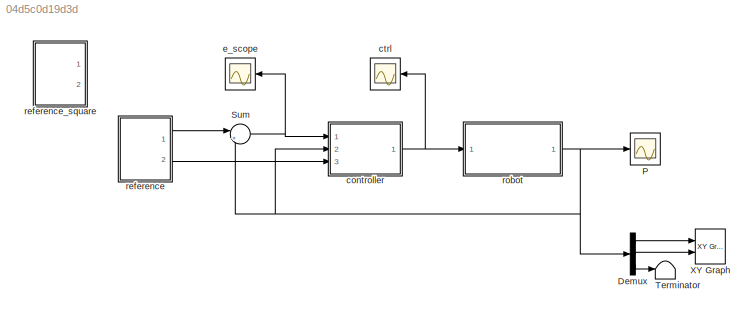
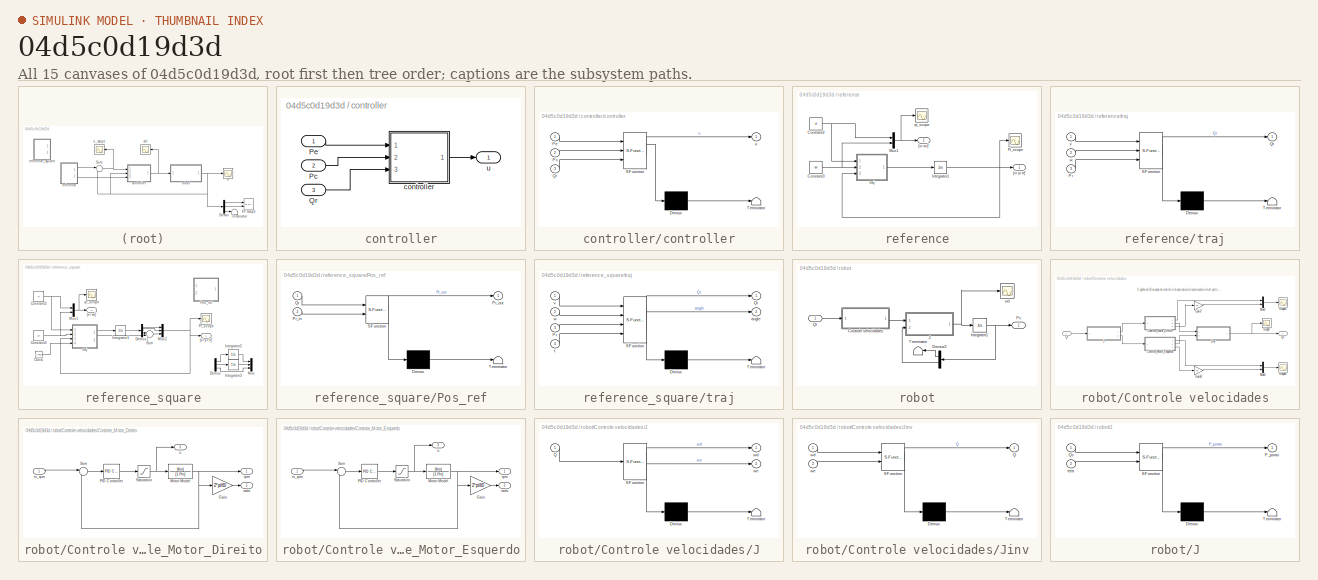
[diagram: thumbnail index - all 15 canvases of the model, root first then tree order]
MODEL slx_04d5c0d19d3d
KIND model
CONFIG AbsTol = auto
CONFIG EnableMultiTasking = on
CONFIG FixedStep = auto
CONFIG MaxStep = auto
CONFIG MinStep = auto
CONFIG RelTol = 1e-5
CONFIG SampleTimeConstraint = Unconstrained
CONFIG Solver = ode45
CONFIG SolverName = ode45
CONFIG StartTime = 0.0
CONFIG StopTime = 1
BLOCK [Demux] Demux
  DisplayOption = bar
  Outputs = 3
  Ports = [1, 3]
BLOCK [Scope] P
  Floating = off
  NumInputPorts = 1
  Ports = [1]
  ScopeSpecificationString = Simulink.scopes.TimeScopeBlockCfg('CurrentConfiguration', extmgr.ConfigurationSet(extmgr.Configuration('Core','General UI',true),extmgr.Configuration('Core','Source UI',true),extmgr.Configuration('Sources','WiredSimulink',true,'DataLogging',true,'DataLoggingVariableName','ScopeData3','DataLoggingSaveFormat','StructureWithTime','DataLoggingDecimation','1','DataLoggingDecimateData',true),extmgr.Conf...<+1715ch>
BLOCK [Sum] Sum
  AccumDataTypeStr = double
  IconShape = round
  InputSameDT = off
  Inputs = |+-
  OutDataTypeStr = Inherit: Inherit via internal rule
  Ports = [2, 1]
  SaturateOnIntegerOverflow = off
BLOCK [Terminator] Terminator
BLOCK [Reference] XY Graph  REF=simulink/Sinks/XY Graph
  Ports = [2]
  SourceBlock = simulink/Sinks/XY Graph
  SourceProductBaseCode = SL
  SourceProductName = Simulink
  SourceType = XY scope.
BLOCK [SubSystem] controller
  Ports = [3, 1]
  RequestExecContextInheritance = off
BLOCK [Inport] controller/Pc
  IconDisplay = Port number
  Port = 2
BLOCK [Inport] controller/Pe
  IconDisplay = Port number
BLOCK [Inport] controller/Qr
  IconDisplay = Port number
  Port = 3
BLOCK [SubSystem] controller/controller
  ErrorFcn = Stateflow.Translate.translate
  PermitHierarchicalResolution = ExplicitOnly
  Ports = [3, 1]
  RequestExecContextInheritance = off
  SFBlockType = MATLAB Function
  TreatAsAtomicUnit = on
BLOCK [Demux] controller/controller/ Demux 
  Outputs = 1
  Ports = [1, 1]
BLOCK [S-Function] controller/controller/ SFunction 
  EnableBusSupport = on
  FunctionName = sf_sfun
  Parameters = kt,kx,ky
  PortCounts = [3 2]
  Ports = [3, 2]
  SFcnIsStateOwnerBlock = off
  SFunctionDeploymentMode = off
  Tag = Stateflow S-Function Kanayama_seguidor 4
BLOCK [Terminator] controller/controller/ Terminator 
BLOCK [Inport] controller/controller/Pc
  IconDisplay = Port number
  Port = 2
BLOCK [Inport] controller/controller/Pe
  IconDisplay = Port number
BLOCK [Inport] controller/controller/Qr
  IconDisplay = Port number
  Port = 3
BLOCK [Outport] controller/controller/u
  IconDisplay = Port number
BLOCK [Outport] controller/u
  IconDisplay = Port number
BLOCK [Scope] ctrl
  Floating = off
  NumInputPorts = 1
  Ports = [1]
  ScopeSpecificationString = Simulink.scopes.TimeScopeBlockCfg('CurrentConfiguration', extmgr.ConfigurationSet(extmgr.Configuration('Core','General UI',true),extmgr.Configuration('Core','Source UI',true),extmgr.Configuration('Sources','WiredSimulink',true,'DataLogging',true,'DataLoggingVariableName','ctrl','DataLoggingSaveFormat','StructureWithTime','DataLoggingDecimation','1','DataLoggingDecimateData',true),extmgr.Configurat...<+1724ch>
BLOCK [Scope] e_scope
  Floating = off
  NumInputPorts = 1
  Ports = [1]
  ScopeSpecificationString = Simulink.scopes.TimeScopeBlockCfg('CurrentConfiguration', extmgr.ConfigurationSet(extmgr.Configuration('Core','General UI',true),extmgr.Configuration('Core','Source UI',true),extmgr.Configuration('Sources','WiredSimulink',true,'DataLogging',true,'DataLoggingVariableName','e','DataLoggingSaveFormat','StructureWithTime','DataLoggingDecimation','1','DataLoggingDecimateData',true),extmgr.Configuration...<+1785ch>
BLOCK [SubSystem] reference
  Ports = [0, 2]
  RequestExecContextInheritance = off
BLOCK [Constant] reference/Constant2
  Value = vr
  VectorParams1D = off
BLOCK [Constant] reference/Constant3
  Value = wr
  VectorParams1D = off
BLOCK [Integrator] reference/Integrator1
  InitialCondition = ini
  Ports = [1, 1]
BLOCK [Mux] reference/Mux1
  DisplayOption = bar
  Inputs = 2
  Ports = [2, 1]
BLOCK [Scope] reference/Pr_scope
  Floating = off
  NumInputPorts = 1
  Ports = [1]
  ScopeSpecificationString = Simulink.scopes.TimeScopeBlockCfg('CurrentConfiguration', extmgr.ConfigurationSet(extmgr.Configuration('Core','General UI',true),extmgr.Configuration('Core','Source UI',true),extmgr.Configuration('Sources','WiredSimulink',true,'DataLogging',true,'DataLoggingVariableName','ScopeData1','DataLoggingSaveFormat','StructureWithTime','DataLoggingDecimation','1','DataLoggingDecimateData',true),extmgr.Conf...<+1783ch>
BLOCK [Outport] reference/[vr wr]'
  IconDisplay = Port number
  Port = 2
BLOCK [Outport] reference/[xr yr tr]' 
  IconDisplay = Port number
BLOCK [Scope] reference/qr_scope
  Floating = off
  NumInputPorts = 1
  Ports = [1]
  ScopeSpecificationString = Simulink.scopes.TimeScopeBlockCfg('CurrentConfiguration', extmgr.ConfigurationSet(extmgr.Configuration('Core','General UI',true),extmgr.Configuration('Core','Source UI',true),extmgr.Configuration('Sources','WiredSimulink',true,'DataLogging',true,'DataLoggingVariableName','ScopeData2','DataLoggingSaveFormat','StructureWithTime','DataLoggingDecimation','1','DataLoggingDecimateData',true),extmgr.Conf...<+1699ch>
BLOCK [SubSystem] reference/traj
  ErrorFcn = Stateflow.Translate.translate
  PermitHierarchicalResolution = ExplicitOnly
  Ports = [3, 1]
  RequestExecContextInheritance = off
  SFBlockType = MATLAB Function
  TreatAsAtomicUnit = on
BLOCK [Demux] reference/traj/ Demux 
  Outputs = 1
  Ports = [1, 1]
BLOCK [S-Function] reference/traj/ SFunction 
  EnableBusSupport = on
  FunctionName = sf_sfun
  PortCounts = [3 2]
  Ports = [3, 2]
  SFcnIsStateOwnerBlock = off
  SFunctionDeploymentMode = off
  Tag = Stateflow S-Function Kanayama_seguidor 7
BLOCK [Terminator] reference/traj/ Terminator 
BLOCK [Inport] reference/traj/Pr
  IconDisplay = Port number
  Port = 3
BLOCK [Outport] reference/traj/Qr
  IconDisplay = Port number
BLOCK [Inport] reference/traj/v
  IconDisplay = Port number
BLOCK [Inport] reference/traj/w
  IconDisplay = Port number
  Port = 2
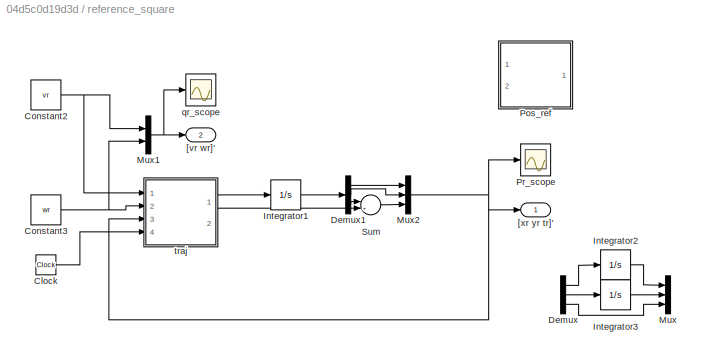
BLOCK [SubSystem] reference_square
  Commented = on
  Ports = [0, 2]
  RequestExecContextInheritance = off
BLOCK [Clock] reference_square/Clock
BLOCK [Constant] reference_square/Constant2
  SampleTime = Ts
  Value = vr
  VectorParams1D = off
BLOCK [Constant] reference_square/Constant3
  SampleTime = Ts
  Value = wr
  VectorParams1D = off
BLOCK [Demux] reference_square/Demux
  Commented = on
  DisplayOption = bar
  Outputs = 3
  Ports = [1, 3]
BLOCK [Demux] reference_square/Demux1
  DisplayOption = bar
  Outputs = 3
  Ports = [1, 3]
BLOCK [Integrator] reference_square/Integrator1
  InitialCondition = ini
  Ports = [1, 1]
BLOCK [Integrator] reference_square/Integrator2
  Commented = on
  InitialCondition = ini(1)
  Ports = [1, 1]
BLOCK [Integrator] reference_square/Integrator3
  Commented = on
  InitialCondition = ini(2)
  Ports = [1, 1]
BLOCK [Mux] reference_square/Mux
  Commented = on
  DisplayOption = bar
  Inputs = 3
  Ports = [3, 1]
BLOCK [Mux] reference_square/Mux1
  DisplayOption = bar
  Inputs = 2
  Ports = [2, 1]
BLOCK [Mux] reference_square/Mux2
  DisplayOption = bar
  Inputs = 3
  Ports = [3, 1]
BLOCK [SubSystem] reference_square/Pos_ref
  Commented = on
  ErrorFcn = Stateflow.Translate.translate
  PermitHierarchicalResolution = ExplicitOnly
  Ports = [2, 1]
  RequestExecContextInheritance = off
  SFBlockType = MATLAB Function
  TreatAsAtomicUnit = on
BLOCK [Demux] reference_square/Pos_ref/ Demux 
  Outputs = 1
  Ports = [1, 1]
BLOCK [S-Function] reference_square/Pos_ref/ SFunction 
  EnableBusSupport = on
  FunctionName = sf_sfun
  PortCounts = [2 2]
  Ports = [2, 2]
  SFcnIsStateOwnerBlock = off
  SFunctionDeploymentMode = off
  Tag = Stateflow S-Function Kanayama_seguidor 6
BLOCK [Terminator] reference_square/Pos_ref/ Terminator 
BLOCK [Inport] reference_square/Pos_ref/Pr_in
  IconDisplay = Port number
  Port = 2
BLOCK [Outport] reference_square/Pos_ref/Pr_out
  IconDisplay = Port number
BLOCK [Inport] reference_square/Pos_ref/Qr
  IconDisplay = Port number
BLOCK [Scope] reference_square/Pr_scope
  Floating = off
  NumInputPorts = 1
  Ports = [1]
  ScopeSpecificationString = Simulink.scopes.TimeScopeBlockCfg('CurrentConfiguration', extmgr.ConfigurationSet(extmgr.Configuration('Core','General UI',true),extmgr.Configuration('Core','Source UI',true),extmgr.Configuration('Sources','WiredSimulink',true,'DataLogging',true,'DataLoggingVariableName','ScopeData2','DataLoggingSaveFormat','StructureWithTime','DataLoggingDecimation','1','DataLoggingDecimateData',true),extmgr.Conf...<+1791ch>
BLOCK [Sum] reference_square/Sum
  IconShape = round
  InputSameDT = off
  Inputs = |++
  OutDataTypeStr = Inherit: Inherit via internal rule
  Ports = [2, 1]
  SaturateOnIntegerOverflow = off
BLOCK [Outport] reference_square/[vr wr]'
  IconDisplay = Port number
  Port = 2
BLOCK [Outport] reference_square/[xr yr tr]' 
  IconDisplay = Port number
BLOCK [Scope] reference_square/qr_scope
  Floating = off
  NumInputPorts = 1
  Ports = [1]
  ScopeSpecificationString = Simulink.scopes.TimeScopeBlockCfg('CurrentConfiguration', extmgr.ConfigurationSet(extmgr.Configuration('Core','General UI',true),extmgr.Configuration('Core','Source UI',true),extmgr.Configuration('Sources','WiredSimulink',true,'DataLogging',true,'DataLoggingVariableName','qr','DataLoggingSaveFormat','StructureWithTime','DataLoggingDecimation','1','DataLoggingDecimateData',true),extmgr.Configuratio...<+1685ch>
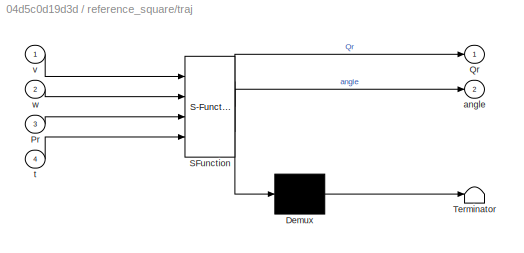
BLOCK [SubSystem] reference_square/traj
  ErrorFcn = Stateflow.Translate.translate
  PermitHierarchicalResolution = ExplicitOnly
  Ports = [4, 2]
  RequestExecContextInheritance = off
  SFBlockType = MATLAB Function
  TreatAsAtomicUnit = on
BLOCK [Demux] reference_square/traj/ Demux 
  Outputs = 1
  Ports = [1, 1]
BLOCK [S-Function] reference_square/traj/ SFunction 
  EnableBusSupport = on
  FunctionName = sf_sfun
  PortCounts = [4 3]
  Ports = [4, 3]
  SFcnIsStateOwnerBlock = off
  SFunctionDeploymentMode = off
  Tag = Stateflow S-Function Kanayama_seguidor 1
BLOCK [Terminator] reference_square/traj/ Terminator 
BLOCK [Inport] reference_square/traj/Pr
  IconDisplay = Port number
  Port = 3
BLOCK [Outport] reference_square/traj/Qr
  IconDisplay = Port number
BLOCK [Outport] reference_square/traj/angle
  IconDisplay = Port number
  Port = 2
BLOCK [Inport] reference_square/traj/t
  IconDisplay = Port number
  Port = 4
BLOCK [Inport] reference_square/traj/v
  IconDisplay = Port number
BLOCK [Inport] reference_square/traj/w
  IconDisplay = Port number
  Port = 2
BLOCK [SubSystem] robot
  Ports = [1, 1]
  RequestExecContextInheritance = off
BLOCK [SubSystem] robot/Controle velocidades
  Ports = [1, 1]
  RequestExecContextInheritance = off
BLOCK [SubSystem] robot/Controle velocidades/Controle_Motor_Direito
  Ports = [1, 3]
  RequestExecContextInheritance = off
BLOCK [Gain] robot/Controle velocidades/Controle_Motor_Direito/Gain
  Gain = 2*pi/60
  OutDataTypeStr = Inherit: Inherit via internal rule
  ParamDataTypeStr = Inherit: Inherit via internal rule
  SaturateOnIntegerOverflow = off
BLOCK [TransferFcn] robot/Controle velocidades/Controle_Motor_Direito/Motor Model
  Denominator = [1 Pm]
  Numerator = [Km]
BLOCK [Reference] robot/Controle velocidades/Controle_Motor_Direito/PID Controller  REF=simulink/Continuous/PID Controller
  Ports = [1, 1]
  SourceBlock = simulink/Continuous/PID Controller
  SourceProductBaseCode = SL
  SourceProductName = Simulink
  SourceType = PID 1dof
BLOCK [Saturate] robot/Controle velocidades/Controle_Motor_Direito/Saturation
  InputPortMap = u0
  LowerLimit = -100
  Ports = [1, 1]
  UpperLimit = 100
BLOCK [Sum] robot/Controle velocidades/Controle_Motor_Direito/Sum
  IconShape = round
  InputSameDT = off
  Inputs = |+-
  OutDataTypeStr = Inherit: Inherit via internal rule
  Ports = [2, 1]
  SaturateOnIntegerOverflow = off
BLOCK [Inport] robot/Controle velocidades/Controle_Motor_Direito/in_rpm
  IconDisplay = Port number
BLOCK [Outport] robot/Controle velocidades/Controle_Motor_Direito/rads
  IconDisplay = Port number
  Port = 2
BLOCK [Outport] robot/Controle velocidades/Controle_Motor_Direito/rpm
  IconDisplay = Port number
BLOCK [Outport] robot/Controle velocidades/Controle_Motor_Direito/u
  IconDisplay = Port number
  Port = 3
BLOCK [SubSystem] robot/Controle velocidades/Controle_Motor_Esquerdo
  Ports = [1, 3]
  RequestExecContextInheritance = off
BLOCK [Gain] robot/Controle velocidades/Controle_Motor_Esquerdo/Gain
  Gain = 2*pi/60
  OutDataTypeStr = Inherit: Inherit via internal rule
  ParamDataTypeStr = Inherit: Inherit via internal rule
  SaturateOnIntegerOverflow = off
BLOCK [TransferFcn] robot/Controle velocidades/Controle_Motor_Esquerdo/Motor Model
  Denominator = [1 Pm]
  Numerator = [Km]
BLOCK [Reference] robot/Controle velocidades/Controle_Motor_Esquerdo/PID Controller  REF=simulink/Continuous/PID Controller
  Ports = [1, 1]
  SourceBlock = simulink/Continuous/PID Controller
  SourceProductBaseCode = SL
  SourceProductName = Simulink
  SourceType = PID 1dof
BLOCK [Saturate] robot/Controle velocidades/Controle_Motor_Esquerdo/Saturation
  InputPortMap = u0
  LowerLimit = -100
  Ports = [1, 1]
  UpperLimit = 100
BLOCK [Sum] robot/Controle velocidades/Controle_Motor_Esquerdo/Sum
  IconShape = round
  InputSameDT = off
  Inputs = |+-
  OutDataTypeStr = Inherit: Inherit via internal rule
  Ports = [2, 1]
  SaturateOnIntegerOverflow = off
BLOCK [Inport] robot/Controle velocidades/Controle_Motor_Esquerdo/in_rpm
  IconDisplay = Port number
BLOCK [Outport] robot/Controle velocidades/Controle_Motor_Esquerdo/rads
  IconDisplay = Port number
  Port = 2
BLOCK [Outport] robot/Controle velocidades/Controle_Motor_Esquerdo/rpm
  IconDisplay = Port number
BLOCK [Outport] robot/Controle velocidades/Controle_Motor_Esquerdo/u
  IconDisplay = Port number
  Port = 3
BLOCK [Gain] robot/Controle velocidades/Gain7
  Gain = 10
  OutDataTypeStr = Inherit: Inherit via internal rule
  ParamDataTypeStr = Inherit: Inherit via internal rule
  SaturateOnIntegerOverflow = off
BLOCK [Gain] robot/Controle velocidades/Gain8
  Gain = 10
  OutDataTypeStr = Inherit: Inherit via internal rule
  ParamDataTypeStr = Inherit: Inherit via internal rule
  SaturateOnIntegerOverflow = off
BLOCK [SubSystem] robot/Controle velocidades/J
  ErrorFcn = Stateflow.Translate.translate
  PermitHierarchicalResolution = ExplicitOnly
  Ports = [1, 2]
  RequestExecContextInheritance = off
  SFBlockType = MATLAB Function
  TreatAsAtomicUnit = on
BLOCK [Demux] robot/Controle velocidades/J/ Demux 
  Outputs = 1
  Ports = [1, 1]
BLOCK [S-Function] robot/Controle velocidades/J/ SFunction 
  EnableBusSupport = on
  FunctionName = sf_sfun
  PortCounts = [1 3]
  Ports = [1, 3]
  SFcnIsStateOwnerBlock = off
  SFunctionDeploymentMode = off
  Tag = Stateflow S-Function Kanayama_seguidor 2
BLOCK [Terminator] robot/Controle velocidades/J/ Terminator 
BLOCK [Inport] robot/Controle velocidades/J/Q
  IconDisplay = Port number
BLOCK [Outport] robot/Controle velocidades/J/wd
  IconDisplay = Port number
BLOCK [Outport] robot/Controle velocidades/J/we
  IconDisplay = Port number
  Port = 2
BLOCK [SubSystem] robot/Controle velocidades/Jinv
  ErrorFcn = Stateflow.Translate.translate
  PermitHierarchicalResolution = ExplicitOnly
  Ports = [2, 1]
  RequestExecContextInheritance = off
  SFBlockType = MATLAB Function
  TreatAsAtomicUnit = on
BLOCK [Demux] robot/Controle velocidades/Jinv/ Demux 
  Outputs = 1
  Ports = [1, 1]
BLOCK [S-Function] robot/Controle velocidades/Jinv/ SFunction 
  EnableBusSupport = on
  FunctionName = sf_sfun
  PortCounts = [2 2]
  Ports = [2, 2]
  SFcnIsStateOwnerBlock = off
  SFunctionDeploymentMode = off
  Tag = Stateflow S-Function Kanayama_seguidor 3
BLOCK [Terminator] robot/Controle velocidades/Jinv/ Terminator 
BLOCK [Outport] robot/Controle velocidades/Jinv/Q
  IconDisplay = Port number
BLOCK [Inport] robot/Controle velocidades/Jinv/wd
  IconDisplay = Port number
BLOCK [Inport] robot/Controle velocidades/Jinv/we
  IconDisplay = Port number
  Port = 2
BLOCK [Mux] robot/Controle velocidades/Mux1
  DisplayOption = bar
  Inputs = 2
  Ports = [2, 1]
BLOCK [Mux] robot/Controle velocidades/Mux2
  DisplayOption = bar
  Inputs = 2
  Ports = [2, 1]
BLOCK [Outport] robot/Controle velocidades/Qc
  IconDisplay = Port number
BLOCK [Inport] robot/Controle velocidades/Qr
  IconDisplay = Port number
BLOCK [Scope] robot/Controle velocidades/Scope
  Floating = off
  NumInputPorts = 1
  Ports = [1]
  ScopeSpecificationString = Simulink.scopes.TimeScopeBlockCfg('CurrentConfiguration', extmgr.ConfigurationSet(extmgr.Configuration('Core','General UI',true),extmgr.Configuration('Core','Source UI',true),extmgr.Configuration('Sources','WiredSimulink',true,'DataLoggingVariableName','ScopeData1'),extmgr.Configuration('Visuals','Time Domain',true,'SerializedDisplays',{struct('MinYLimReal','-1.23856','MaxYLimReal','1.68261','YLab...<+1468ch>
BLOCK [Scope] robot/Controle velocidades/Scope1
  Floating = off
  NumInputPorts = 1
  Ports = [1]
  ScopeSpecificationString = Simulink.scopes.TimeScopeBlockCfg('CurrentConfiguration', extmgr.ConfigurationSet(extmgr.Configuration('Core','General UI',true),extmgr.Configuration('Core','Source UI',true),extmgr.Configuration('Sources','WiredSimulink',true,'DataLoggingVariableName','ScopeData4'),extmgr.Configuration('Visuals','Time Domain',true,'SerializedDisplays',{struct('MinYLimReal','-1088.05337','MaxYLimReal','1232.00593'...<+1550ch>
BLOCK [Scope] robot/Controle velocidades/Scope2
  Floating = off
  NumInputPorts = 1
  Ports = [1]
  ScopeSpecificationString = Simulink.scopes.TimeScopeBlockCfg('CurrentConfiguration', extmgr.ConfigurationSet(extmgr.Configuration('Core','General UI',true),extmgr.Configuration('Core','Source UI',true),extmgr.Configuration('Sources','WiredSimulink',true,'DataLoggingVariableName','ScopeData5'),extmgr.Configuration('Visuals','Time Domain',true,'SerializedDisplays',{struct('MinYLimReal','-450.62755','MaxYLimReal','1161.18084',...<+1549ch>
BLOCK [Demux] robot/Demux2
  DisplayOption = bar
  Outputs = [2 1]
  Ports = [1, 2]
BLOCK [Integrator] robot/Integrator1
  InitialCondition = ini
  Ports = [1, 1]
BLOCK [SubSystem] robot/J
  ErrorFcn = Stateflow.Translate.translate
  PermitHierarchicalResolution = ExplicitOnly
  Ports = [2, 1]
  RequestExecContextInheritance = off
  SFBlockType = MATLAB Function
  TreatAsAtomicUnit = on
BLOCK [Demux] robot/J/ Demux 
  Outputs = 1
  Ports = [1, 1]
BLOCK [S-Function] robot/J/ SFunction 
  EnableBusSupport = on
  FunctionName = sf_sfun
  PortCounts = [2 2]
  Ports = [2, 2]
  SFcnIsStateOwnerBlock = off
  SFunctionDeploymentMode = off
  Tag = Stateflow S-Function Kanayama_seguidor 5
BLOCK [Terminator] robot/J/ Terminator 
BLOCK [Outport] robot/J/P_ponto
  IconDisplay = Port number
BLOCK [Inport] robot/J/Qc
  IconDisplay = Port number
BLOCK [Inport] robot/J/teta
  IconDisplay = Port number
  Port = 2
BLOCK [Outport] robot/Pc
  IconDisplay = Port number
BLOCK [Inport] robot/Qr
  IconDisplay = Port number
BLOCK [Terminator] robot/Terminator
BLOCK [Scope] robot/vel
  Floating = off
  NumInputPorts = 1
  Ports = [1]
  ScopeSpecificationString = Simulink.scopes.TimeScopeBlockCfg('CurrentConfiguration', extmgr.ConfigurationSet(extmgr.Configuration('Core','General UI',true),extmgr.Configuration('Core','Source UI',true),extmgr.Configuration('Sources','WiredSimulink',true,'DataLogging',true,'DataLoggingVariableName','ctrl1','DataLoggingSaveFormat','StructureWithTime','DataLoggingDecimation','1','DataLoggingDecimateData',true),extmgr.Configura...<+1796ch>
ANNOTATION robot/Controle velocidades: O ganho de 10 na ação de controle é só para deixa-lá numa escala visível perto da velocidade
LINE Demux:1 -> XY Graph:1
LINE Demux:2 -> XY Graph:2
LINE Demux:3 -> Terminator:1
NET Sum:1 -> controller:1, e_scope:1
LINE controller/Pc:1 -> controller/controller:2
LINE controller/Pe:1 -> controller/controller:1
LINE controller/Qr:1 -> controller/controller:3
LINE controller/controller:1 -> controller/u:1
NET controller:1 -> ctrl:1, robot:1
NET reference/Constant2:1 -> reference/Mux1:1, reference/traj:1
NET reference/Constant3:1 -> reference/Mux1:2, reference/traj:2
NET reference/Integrator1:1 -> reference/Pr_scope:1, reference/[xr yr tr]' :1, reference/traj:3
NET reference/Mux1:1 -> reference/[vr wr]':1, reference/qr_scope:1
LINE reference/traj:1 -> reference/Integrator1:1
LINE reference:1 -> Sum:1
LINE reference:2 -> controller:3
LINE reference_square/Clock:1 -> reference_square/traj:4
NET reference_square/Constant2:1 -> reference_square/Mux1:1, reference_square/traj:1
NET reference_square/Constant3:1 -> reference_square/Mux1:2, reference_square/traj:2
LINE reference_square/Demux1:1 -> reference_square/Mux2:1
LINE reference_square/Demux1:2 -> reference_square/Mux2:2
LINE reference_square/Demux1:3 -> reference_square/Sum:1
LINE reference_square/Demux:1 -> reference_square/Integrator2:1
LINE reference_square/Demux:2 -> reference_square/Integrator3:1
LINE reference_square/Demux:3 -> reference_square/Mux:3
LINE reference_square/Integrator1:1 -> reference_square/Demux1:1
LINE reference_square/Integrator2:1 -> reference_square/Mux:1
LINE reference_square/Integrator3:1 -> reference_square/Mux:2
NET reference_square/Mux1:1 -> reference_square/[vr wr]':1, reference_square/qr_scope:1
NET reference_square/Mux2:1 -> reference_square/Pr_scope:1, reference_square/[xr yr tr]' :1, reference_square/traj:3
LINE reference_square/Sum:1 -> reference_square/Mux2:3
LINE reference_square/traj:1 -> reference_square/Integrator1:1
LINE reference_square/traj:2 -> reference_square/Sum:2
LINE robot/Controle velocidades/Controle_Motor_Direito/Gain:1 -> robot/Controle velocidades/Controle_Motor_Direito/rads:1
NET robot/Controle velocidades/Controle_Motor_Direito/Motor Model:1 -> robot/Controle velocidades/Controle_Motor_Direito/Gain:1, robot/Controle velocidades/Controle_Motor_Direito/Sum:2, robot/Controle velocidades/Controle_Motor_Direito/rpm:1
LINE robot/Controle velocidades/Controle_Motor_Direito/PID Controller:1 -> robot/Controle velocidades/Controle_Motor_Direito/Saturation:1
NET robot/Controle velocidades/Controle_Motor_Direito/Saturation:1 -> robot/Controle velocidades/Controle_Motor_Direito/Motor Model:1, robot/Controle velocidades/Controle_Motor_Direito/u:1
LINE robot/Controle velocidades/Controle_Motor_Direito/Sum:1 -> robot/Controle velocidades/Controle_Motor_Direito/PID Controller:1
LINE robot/Controle velocidades/Controle_Motor_Direito/in_rpm:1 -> robot/Controle velocidades/Controle_Motor_Direito/Sum:1
LINE robot/Controle velocidades/Controle_Motor_Direito:1 -> robot/Controle velocidades/Mux1:1
LINE robot/Controle velocidades/Controle_Motor_Direito:2 -> robot/Controle velocidades/Jinv:1
LINE robot/Controle velocidades/Controle_Motor_Direito:3 -> robot/Controle velocidades/Gain7:1
LINE robot/Controle velocidades/Controle_Motor_Esquerdo/Gain:1 -> robot/Controle velocidades/Controle_Motor_Esquerdo/rads:1
NET robot/Controle velocidades/Controle_Motor_Esquerdo/Motor Model:1 -> robot/Controle velocidades/Controle_Motor_Esquerdo/Gain:1, robot/Controle velocidades/Controle_Motor_Esquerdo/Sum:2, robot/Controle velocidades/Controle_Motor_Esquerdo/rpm:1
LINE robot/Controle velocidades/Controle_Motor_Esquerdo/PID Controller:1 -> robot/Controle velocidades/Controle_Motor_Esquerdo/Saturation:1
NET robot/Controle velocidades/Controle_Motor_Esquerdo/Saturation:1 -> robot/Controle velocidades/Controle_Motor_Esquerdo/Motor Model:1, robot/Controle velocidades/Controle_Motor_Esquerdo/u:1
LINE robot/Controle velocidades/Controle_Motor_Esquerdo/Sum:1 -> robot/Controle velocidades/Controle_Motor_Esquerdo/PID Controller:1
LINE robot/Controle velocidades/Controle_Motor_Esquerdo/in_rpm:1 -> robot/Controle velocidades/Controle_Motor_Esquerdo/Sum:1
LINE robot/Controle velocidades/Controle_Motor_Esquerdo:1 -> robot/Controle velocidades/Mux2:1
LINE robot/Controle velocidades/Controle_Motor_Esquerdo:2 -> robot/Controle velocidades/Jinv:2
LINE robot/Controle velocidades/Controle_Motor_Esquerdo:3 -> robot/Controle velocidades/Gain8:1
LINE robot/Controle velocidades/Gain7:1 -> robot/Controle velocidades/Mux1:2
LINE robot/Controle velocidades/Gain8:1 -> robot/Controle velocidades/Mux2:2
LINE robot/Controle velocidades/J:1 -> robot/Controle velocidades/Controle_Motor_Direito:1
LINE robot/Controle velocidades/J:2 -> robot/Controle velocidades/Controle_Motor_Esquerdo:1
NET robot/Controle velocidades/Jinv:1 -> robot/Controle velocidades/Qc:1, robot/Controle velocidades/Scope:1
LINE robot/Controle velocidades/Mux1:1 -> robot/Controle velocidades/Scope1:1
LINE robot/Controle velocidades/Mux2:1 -> robot/Controle velocidades/Scope2:1
LINE robot/Controle velocidades/Qr:1 -> robot/Controle velocidades/J:1
LINE robot/Controle velocidades:1 -> robot/J:1
LINE robot/Demux2:1 -> robot/Terminator:1
LINE robot/Demux2:2 -> robot/J:2
NET robot/Integrator1:1 -> robot/Demux2:1, robot/Pc:1
NET robot/J:1 -> robot/Integrator1:1, robot/vel:1
LINE robot/Qr:1 -> robot/Controle velocidades:1
NET robot:1 -> Demux:1, P:1, Sum:2, controller:2
note: NET lines group one-source signal fan-out (src -> all destinations, sorted); 1:1 wires keep LINE
CHART reference_square/traj states=1 transitions=1
  STATE_LABEL 'eML_blk_kernel()'
  STATE_LABEL 'SCRIPT:\nfunction [Qr, angle] = fcn(v, w, Pr, t)\n \n if (Pr(1) <= 1) && (Pr(2) <= 0)\n     Pr(3) = 0;\n else if (Pr(1) >= 1) && (Pr(2) <= 1)\n        Pr(3) = pi/2;\n     else if (Pr(1) >= 1) && (Pr(2) >= 1)\n             Pr(3) = pi;\n         else if (Pr(1) <= 0) && (Pr(2) >= 1)\n                 Pr(3) = 270*pi/180;\n             end \n         end\n     end\n end\n \n Qr = [cos(Pr(3)) 0; sin(Pr(3)) 0; 0 1]*[v; ...<+25ch>'
CHART robot/Controle velocidades/J states=1 transitions=1
  STATE_LABEL 'eML_blk_kernel()'
  STATE_LABEL 'SCRIPT:\nfunction [wd, we] = fcn(Q)\n% Dados do robô\nr = 16e-3;      % Raio da roda\na = 69e-3;      % Distância do centro do robô até o centro das rodas\n\nw_mot_rpm = (60/(2*pi))*[1/r a/r; 1/r -a/r]*Q;   % o 60/(2pi) é pra converter p/ rpm\nwd = w_mot_rpm(1);\nwe = w_mot_rpm(2);'
CHART robot/Controle velocidades/Jinv states=1 transitions=1
  STATE_LABEL 'eML_blk_kernel()'
  STATE_LABEL 'SCRIPT:\nfunction Q = fcn(wd, we)\n% Dados do robô\nr = 16e-3;      % Raio da roda\na = 69e-3;      % Distância do centro do robô até o centro das rodas\n\nQ = (r/2)*[1 1; 1/a -1/a]*[wd; we];\n\n'
CHART controller/controller states=1 transitions=1
  STATE_LABEL 'eML_blk_kernel()'
  STATE_LABEL "SCRIPT:\nfunction u = fcn(Pe,Pc,Qr,kx,ky,kt)\n\n Pe = [cos(Pc(3)) sin(Pc(3)) 0; -sin(Pc(3)) cos(Pc(3)) 0; 0 0 1]*Pe;\n%  Pe(1) = 0;  %essa linha é um caso a parte (para o seguidor de linha)\n u = [Qr(1)*cos(Pe(3))+kx*Pe(1) Qr(2)+Qr(1)*(ky*Pe(2)+kt*sin(Pe(3)))]';\n \nend"
CHART robot/J states=1 transitions=1
  STATE_LABEL 'eML_blk_kernel()'
  STATE_LABEL 'SCRIPT:\nfunction P_ponto = fcn(Qc, teta)\n\nP_ponto = [Qc(1)*cos(teta); Qc(1)*sin(teta); Qc(2)]; %[Vx, Vy, Vteta];\n'
CHART reference_square/Pos_ref states=1 transitions=1
  STATE_LABEL 'eML_blk_kernel()'
  STATE_LABEL 'SCRIPT:\nfunction Pr_out = fcn(Qr, Pr_in)\n    Pr_out = Qr;\n    Pr_out(1) = Pr_in(1) + Qr(1)*Ts;\n    Pr_out(2) = Pr_in(2) + Qr(2)*Ts;\n    Pr_out(3) = Qr(3);\n \nend'
CHART reference/traj states=1 transitions=1
  STATE_LABEL 'eML_blk_kernel()'
  STATE_LABEL 'SCRIPT:\nfunction Qr = fcn(v, w, Pr)\n\n Qr = [cos(Pr(3)) 0; sin(Pr(3)) 0; 0 1]*[v; w];\n \nend'
